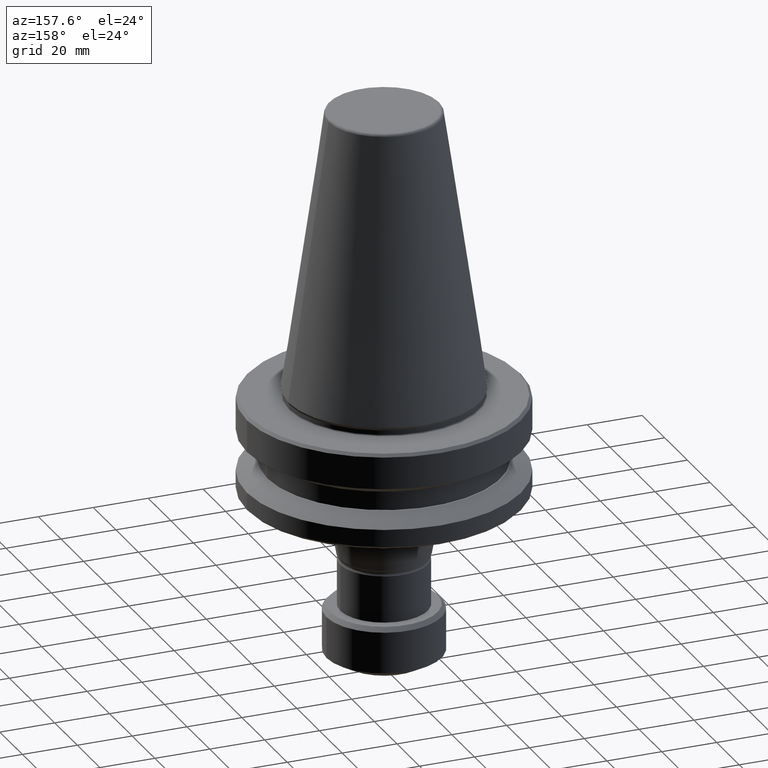
[diagram: clean part render]
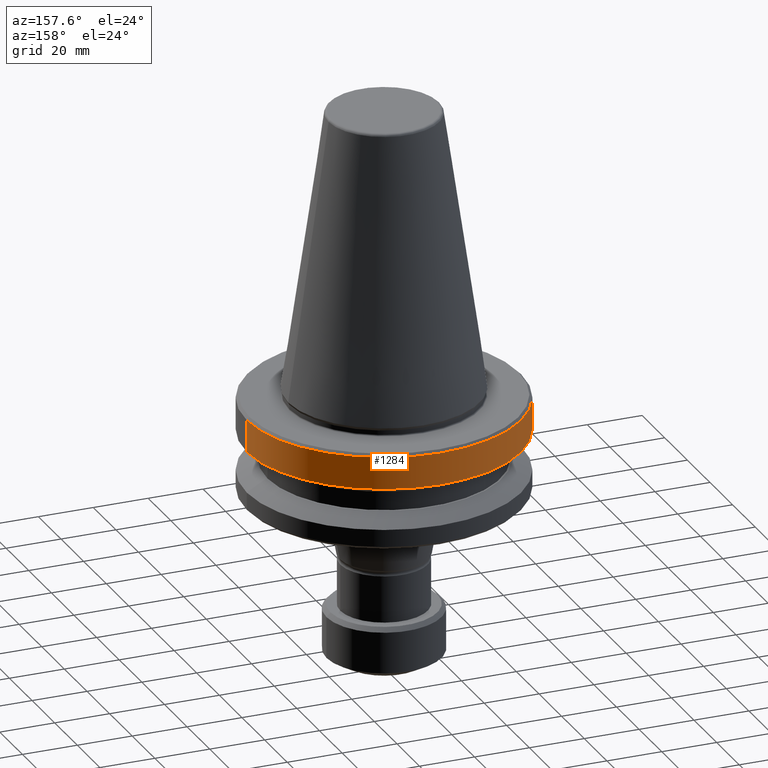
[diagram: same view with one face highlighted and labeled with its STEP entity id]
A machine part, auxiliary view. The second image highlights one B-rep face of the part: STEP entity #1284.
In plain terms, the highlighted cylindrical surface (partial cylindrical patch) has radius 50 mm, axis along (-0, -0, 1).
Its self-contained STEP definition (entity closure, byte-faithful):
#4 = AXIS2_PLACEMENT_3D ( 'NONE', #169, #489, #280 ) ;
#57 = CARTESIAN_POINT ( 'NONE',  ( -50.00000000000015600, 6.123233995736785000E-015, -4.000000000001390900 ) ) ;
#136 = DIRECTION ( 'NONE',  ( -0.0000000000000000000, -0.0000000000000000000, 1.000000000000000000 ) ) ;
#169 = CARTESIAN_POINT ( 'NONE',  ( 0.0000000000000000000, 0.0000000000000000000, 107.2567600161838600 ) ) ;
#180 = AXIS2_PLACEMENT_3D ( 'NONE', #580, #1328, #691 ) ;
#280 = DIRECTION ( 'NONE',  ( 1.000000000000000000, 0.0000000000000000000, 0.0000000000000000000 ) ) ;
#288 = CIRCLE ( 'NONE', #756, 50.00000000000015600 ) ;
#318 = EDGE_LOOP ( 'NONE', ( #1012, #390, #1095, #1023 ) ) ;
#338 = EDGE_CURVE ( 'NONE', #945, #1046, #796, .T. ) ;
#390 = ORIENTED_EDGE ( 'NONE', *, *, #565, .T. ) ;
#456 = DIRECTION ( 'NONE',  ( -0.0000000000000000000, -0.0000000000000000000, 1.000000000000000000 ) ) ;
#489 = DIRECTION ( 'NONE',  ( -0.0000000000000000000, -0.0000000000000000000, 1.000000000000000000 ) ) ;
#532 = CARTESIAN_POINT ( 'NONE',  ( -50.00000000000015600, 6.123233995736785800E-015, -15.70022000322785000 ) ) ;
#565 = EDGE_CURVE ( 'NONE', #940, #1283, #599, .T. ) ;
#570 = EDGE_CURVE ( 'NONE', #1046, #1283, #288, .T. ) ;
#580 = CARTESIAN_POINT ( 'NONE',  ( 0.0000000000000000000, 0.0000000000000000000, -15.70022000322785000 ) ) ;
#599 = LINE ( 'NONE', #1094, #1381 ) ;
#634 = FACE_OUTER_BOUND ( 'NONE', #318, .T. ) ;
#691 = DIRECTION ( 'NONE',  ( 1.000000000000000000, 0.0000000000000000000, 0.0000000000000000000 ) ) ;
#756 = AXIS2_PLACEMENT_3D ( 'NONE', #1096, #456, #1204 ) ;
#796 = LINE ( 'NONE', #1189, #1048 ) ;
#940 = VERTEX_POINT ( 'NONE', #532 ) ;
#945 = VERTEX_POINT ( 'NONE', #1169 ) ;
#972 = CARTESIAN_POINT ( 'NONE',  ( 50.00000000000015600, 0.0000000000000000000, -4.000000000001390900 ) ) ;
#1012 = ORIENTED_EDGE ( 'NONE', *, *, #1215, .T. ) ;
#1016 = CIRCLE ( 'NONE', #180, 50.00000000000015600 ) ;
#1023 = ORIENTED_EDGE ( 'NONE', *, *, #338, .F. ) ;
#1046 = VERTEX_POINT ( 'NONE', #972 ) ;
#1048 = VECTOR ( 'NONE', #1318, 1000.000000000000000 ) ;
#1094 = CARTESIAN_POINT ( 'NONE',  ( -50.00000000000015600, 6.123233995736785000E-015, 107.2567600161838600 ) ) ;
#1095 = ORIENTED_EDGE ( 'NONE', *, *, #570, .F. ) ;
#1096 = CARTESIAN_POINT ( 'NONE',  ( 0.0000000000000000000, 0.0000000000000000000, -4.000000000001390900 ) ) ;
#1159 = CYLINDRICAL_SURFACE ( 'NONE', #4, 50.00000000000015600 ) ;
#1169 = CARTESIAN_POINT ( 'NONE',  ( 50.00000000000015600, 0.0000000000000000000, -15.70022000322785000 ) ) ;
#1189 = CARTESIAN_POINT ( 'NONE',  ( 50.00000000000015600, 0.0000000000000000000, 107.2567600161838600 ) ) ;
#1204 = DIRECTION ( 'NONE',  ( 1.000000000000000000, 0.0000000000000000000, 0.0000000000000000000 ) ) ;
#1215 = EDGE_CURVE ( 'NONE', #945, #940, #1016, .T. ) ;
#1283 = VERTEX_POINT ( 'NONE', #57 ) ;
#1284 = ADVANCED_FACE ( 'NONE', ( #634 ), #1159, .T. ) ;
#1318 = DIRECTION ( 'NONE',  ( -0.0000000000000000000, -0.0000000000000000000, 1.000000000000000000 ) ) ;
#1328 = DIRECTION ( 'NONE',  ( -0.0000000000000000000, -0.0000000000000000000, 1.000000000000000000 ) ) ;
#1381 = VECTOR ( 'NONE', #136, 1000.000000000000000 ) ;